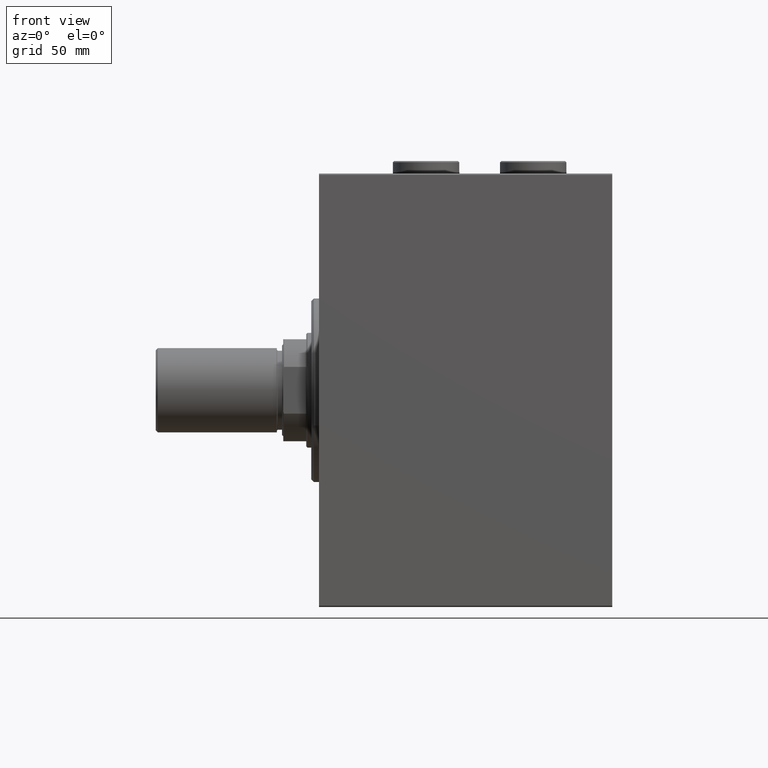
[diagram: clean part render]
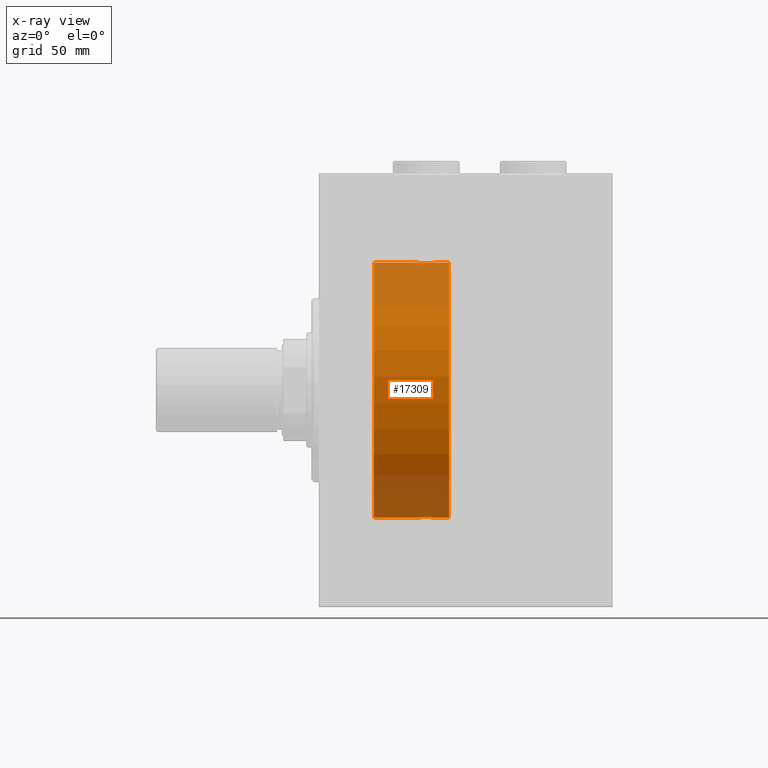
[diagram: x-ray — body ghosted, one internal face saturated and labeled with its STEP entity id]
A machine part, front view, then the same camera in x-ray: the body is ghosted and one INTERNAL B-rep face — a face not visible from any outside direction — is saturated and labeled: STEP entity #17309.
In plain terms, the highlighted cylindrical surface (partial cylindrical patch) has radius 50 mm, axis along (-1, -0, -0).
Its self-contained STEP definition (entity closure, byte-faithful):
#47 = CARTESIAN_POINT ( 'NONE',  ( 45.37519984081966840, -2.597781786597462172, 49.93300953359122474 ) ) ;
#279 = CARTESIAN_POINT ( 'NONE',  ( 43.09737617879037685, -4.115209769591108291, 49.83039196709103891 ) ) ;
#602 = CARTESIAN_POINT ( 'NONE',  ( 44.81153066515420136, -3.199146701881660171, -49.89793607725462010 ) ) ;
#1975 = CARTESIAN_POINT ( 'NONE',  ( 43.37333436579038448, -4.031616700143171528, -49.83731072121799599 ) ) ;
#2007 = CARTESIAN_POINT ( 'NONE',  ( 21.60000000000000142, 0.000000000000000000, 0.000000000000000000 ) ) ;
#2023 = LINE ( 'NONE', #26704, #21055 ) ;
#2192 = CARTESIAN_POINT ( 'NONE',  ( 44.13136399446156588, -3.687400765141517045, -49.86408552998297239 ) ) ;
#2198 = EDGE_CURVE ( 'NONE', #19107, #13311, #20018, .T. ) ;
#2686 = EDGE_LOOP ( 'NONE', ( #6447, #42546, #14525, #14672, #13079, #34974, #10286, #41869 ) ) ;
#3294 = CARTESIAN_POINT ( 'NONE',  ( 41.44002132304352415, -4.222042462213121183, 49.82145436824653473 ) ) ;
#3355 = CARTESIAN_POINT ( 'NONE',  ( 46.25000000000000000, 6.123233970928975205E-15, -50.00000000000000000 ) ) ;
#3966 = LINE ( 'NONE', #35100, #39115 ) ;
#4197 = DIRECTION ( 'NONE',  ( -1.000000000000000000, -0.000000000000000000, -0.000000000000000000 ) ) ;
#4299 = CARTESIAN_POINT ( 'NONE',  ( 45.37881717263738324, -2.593114840406115729, -49.93325460257640458 ) ) ;
#4647 = LINE ( 'NONE', #5331, #19961 ) ;
#5205 = CARTESIAN_POINT ( 'NONE',  ( 37.88750298919665482, -1.108337267831482009, -49.98846998601261760 ) ) ;
#5270 = CARTESIAN_POINT ( 'NONE',  ( 37.75000000000000711, -2.480770331693776875E-23, 50.00000000000000000 ) ) ;
#5331 = CARTESIAN_POINT ( 'NONE',  ( 51.00000000000000000, 6.123233995736766085E-15, -50.00000000000000000 ) ) ;
#5444 = CARTESIAN_POINT ( 'NONE',  ( 39.19302168160690769, -3.203153387937303087, -49.89767833571684008 ) ) ;
#5670 = CARTESIAN_POINT ( 'NONE',  ( 38.80078072038718062, -2.811461347331092320, -49.92127983148853332 ) ) ;
#5721 = DIRECTION ( 'NONE',  ( -1.000000000000000000, -0.000000000000000000, -0.000000000000000000 ) ) ;
#5890 = CARTESIAN_POINT ( 'NONE',  ( 38.31397167878049714, -2.133925816755172455, -49.95498245321557818 ) ) ;
#6447 = ORIENTED_EDGE ( 'NONE', *, *, #2198, .F. ) ;
#6748 = CARTESIAN_POINT ( 'NONE',  ( 38.79696438048011942, -2.807099414226279510, 49.92152599098507437 ) ) ;
#6980 = CARTESIAN_POINT ( 'NONE',  ( 46.25000000000001421, -0.2808785465865648034, 50.00000000000001421 ) ) ;
#7210 = CARTESIAN_POINT ( 'NONE',  ( 38.31062844320614857, -2.128188802142364722, 49.95522967821975158 ) ) ;
#7320 = CARTESIAN_POINT ( 'NONE',  ( 51.00000000000000000, 6.123233995736766085E-15, -50.00000000000000000 ) ) ;
#9119 = CARTESIAN_POINT ( 'NONE',  ( 42.28395287026697247, -4.249777379711388470, -49.81906655360197789 ) ) ;
#9349 = CARTESIAN_POINT ( 'NONE',  ( 37.75000000000000711, 3.968053759906218216E-15, -50.00000000000000000 ) ) ;
#10207 = FACE_OUTER_BOUND ( 'NONE', #2686, .T. ) ;
#10286 = ORIENTED_EDGE ( 'NONE', *, *, #44460, .T. ) ;
#10428 = CARTESIAN_POINT ( 'NONE',  ( 40.62666563420964394, -4.031616700143185739, 49.83731072121799599 ) ) ;
#11102 = CARTESIAN_POINT ( 'NONE',  ( 42.27724927037918690, -4.250219976861644433, 49.81902879621014080 ) ) ;
#12011 = CARTESIAN_POINT ( 'NONE',  ( 21.60000000000000142, 6.123233995736766085E-15, -50.00000000000000000 ) ) ;
#12120 = CARTESIAN_POINT ( 'NONE',  ( 46.11431913306007147, -1.101350136471736407, -49.98862054280446898 ) ) ;
#12208 = AXIS2_PLACEMENT_3D ( 'NONE', #17132, #24736, #21269 ) ;
#12348 = CARTESIAN_POINT ( 'NONE',  ( 43.88744739392799943, -3.818052230167706007, -49.85412671291931730 ) ) ;
#12810 = CARTESIAN_POINT ( 'NONE',  ( 39.87368355124921493, -3.690299572754706325, -49.86386974736159772 ) ) ;
#13015 = B_SPLINE_CURVE_WITH_KNOTS ( 'NONE', 3,
 ( #28648, #42689, #38788, #38318, #21041, #38554, #7210, #17364, #6748, #20806, #28430, #34871, #35106, #10428, #31876, #3294, #31653, #11102, #21266, #279, #31435, #35324, #45476, #13902, #25173, #27976, #47, #42012, #24501, #17596, #39226, #14354, #6980, #42468 ),
 .UNSPECIFIED., .F., .F.,
 ( 4, 2, 2, 2, 2, 2, 2, 2, 2, 2, 2, 2, 2, 2, 2, 2, 4 ),
 ( 0.01329343152928754573, 0.01412407817529632778, 0.01495472482130510983, 0.01578537146731389187, 0.01661601811332267392, 0.01744666475933145597, 0.01827731140534023802, 0.01910795805134902006, 0.01993860469735780558, 0.02076925134336658763, 0.02159989798937536967, 0.02243054463538415519, 0.02326119128139293724, 0.02409183792740172275, 0.02492248457341050133, 0.02575313121941928685, 0.02658377786542807236 ),
 .UNSPECIFIED. ) ;
#13079 = ORIENTED_EDGE ( 'NONE', *, *, #30315, .T. ) ;
#13123 = VERTEX_POINT ( 'NONE', #36828 ) ;
#13140 = VERTEX_POINT ( 'NONE', #29720 ) ;
#13311 = VERTEX_POINT ( 'NONE', #22033 ) ;
#13902 = CARTESIAN_POINT ( 'NONE',  ( 44.58820214676200777, -3.382416624899779123, 49.88570010427956447 ) ) ;
#14016 = DIRECTION ( 'NONE',  ( -1.000000000000000000, -0.000000000000000000, -0.000000000000000000 ) ) ;
#14354 = CARTESIAN_POINT ( 'NONE',  ( 46.22242635520781562, -0.5587117664567141651, 49.99763378604805553 ) ) ;
#14525 = ORIENTED_EDGE ( 'NONE', *, *, #31477, .T. ) ;
#14672 = ORIENTED_EDGE ( 'NONE', *, *, #25410, .T. ) ;
#16084 = DIRECTION ( 'NONE',  ( 0.000000000000000000, 0.000000000000000000, 1.000000000000000000 ) ) ;
#17132 = CARTESIAN_POINT ( 'NONE',  ( 51.00000000000000000, 0.000000000000000000, 0.000000000000000000 ) ) ;
#17309 = ADVANCED_FACE ( 'NONE', ( #10207 ), #45252, .F. ) ;
#17364 = CARTESIAN_POINT ( 'NONE',  ( 38.62118282736263097, -2.593114840406127275, 49.93325460257640458 ) ) ;
#17596 = CARTESIAN_POINT ( 'NONE',  ( 46.03079796155343928, -1.375411031076041901, 49.98173289062310687 ) ) ;
#18146 = CARTESIAN_POINT ( 'NONE',  ( 45.20303561951989479, -2.807099414226266632, -49.92152599098507437 ) ) ;
#18712 = DIRECTION ( 'NONE',  ( -1.000000000000000000, -0.000000000000000000, -0.000000000000000000 ) ) ;
#19043 = CARTESIAN_POINT ( 'NONE',  ( 45.82100581985224608, -1.881229021238117749, -49.96525240872482954 ) ) ;
#19107 = VERTEX_POINT ( 'NONE', #34891 ) ;
#19134 = VERTEX_POINT ( 'NONE', #28448 ) ;
#19325 = B_SPLINE_CURVE_WITH_KNOTS ( 'NONE', 3,
 ( #36324, #35648, #32887, #12120, #36557, #19043, #39105, #4299, #18146, #602, #40697, #2192, #12348, #1975, #44149, #26425, #9119, #23183, #26888, #41159, #37236, #19941, #12810, #44608, #5444, #5670, #19724, #5890, #40245, #33793, #5205, #30569, #34018, #9349 ),
 .UNSPECIFIED., .F., .F.,
 ( 4, 2, 2, 2, 2, 2, 2, 2, 2, 2, 2, 2, 2, 2, 2, 2, 4 ),
 ( 0.01329343152928757349, 0.01412407817529635554, 0.01495472482130513932, 0.01578537146731392310, 0.01661601811332270515, 0.01744666475933148719, 0.01827731140534026924, 0.01910795805134905129, 0.01993860469735783680, 0.02076925134336661885, 0.02159989798937540090, 0.02243054463538418294, 0.02326119128139296499, 0.02409183792740174704, 0.02492248457341052909, 0.02575313121941931460, 0.02658377786542809665 ),
 .UNSPECIFIED. ) ;
#19724 = CARTESIAN_POINT ( 'NONE',  ( 38.62480015918035292, -2.597781786597455067, -49.93300953359122474 ) ) ;
#19941 = CARTESIAN_POINT ( 'NONE',  ( 40.11782950515556934, -3.820681512513366851, -49.85392475515399724 ) ) ;
#19961 = VECTOR ( 'NONE', #18712, 1000.000000000000000 ) ;
#20018 = CIRCLE ( 'NONE', #21493, 50.00000000000000000 ) ;
#20806 = CARTESIAN_POINT ( 'NONE',  ( 39.18846933484581285, -3.199146701881674382, 49.89793607725460589 ) ) ;
#21041 = CARTESIAN_POINT ( 'NONE',  ( 37.96727357902688738, -1.369753890039652200, 49.98188917176553048 ) ) ;
#21055 = VECTOR ( 'NONE', #5721, 1000.000000000000000 ) ;
#21266 = CARTESIAN_POINT ( 'NONE',  ( 42.55408564880149669, -4.222816005855207777, 49.82138837911247009 ) ) ;
#21269 = DIRECTION ( 'NONE',  ( 0.000000000000000000, 0.000000000000000000, 1.000000000000000000 ) ) ;
#21493 = AXIS2_PLACEMENT_3D ( 'NONE', #23235, #29942, #43979 ) ;
#22033 = CARTESIAN_POINT ( 'NONE',  ( 51.00000000000000000, 0.000000000000000000, 50.00000000000000000 ) ) ;
#23183 = CARTESIAN_POINT ( 'NONE',  ( 41.72275072962082021, -4.250219976861628446, -49.81902879621016211 ) ) ;
#23235 = CARTESIAN_POINT ( 'NONE',  ( 51.00000000000000000, 0.000000000000000000, 0.000000000000000000 ) ) ;
#23616 = VECTOR ( 'NONE', #14016, 1000.000000000000000 ) ;
#23793 = VERTEX_POINT ( 'NONE', #5270 ) ;
#24501 = CARTESIAN_POINT ( 'NONE',  ( 45.81839248987871116, -1.886522330773416911, 49.96505190380066352 ) ) ;
#24689 = EDGE_CURVE ( 'NONE', #19107, #25807, #45587, .T. ) ;
#24736 = DIRECTION ( 'NONE',  ( -1.000000000000000000, -0.000000000000000000, -0.000000000000000000 ) ) ;
#25173 = CARTESIAN_POINT ( 'NONE',  ( 44.80697831839310652, -3.203153387937322183, 49.89767833571684719 ) ) ;
#25201 = EDGE_CURVE ( 'NONE', #23793, #13123, #3966, .T. ) ;
#25410 = EDGE_CURVE ( 'NONE', #19134, #25435, #4647, .T. ) ;
#25435 = VERTEX_POINT ( 'NONE', #12011 ) ;
#25807 = VERTEX_POINT ( 'NONE', #3355 ) ;
#26425 = CARTESIAN_POINT ( 'NONE',  ( 42.55997867695646164, -4.222042462213109637, -49.82145436824654183 ) ) ;
#26688 = DIRECTION ( 'NONE',  ( -1.000000000000000000, 0.000000000000000000, 0.000000000000000000 ) ) ;
#26704 = CARTESIAN_POINT ( 'NONE',  ( 51.00000000000000000, 0.000000000000000000, 50.00000000000000000 ) ) ;
#26888 = CARTESIAN_POINT ( 'NONE',  ( 41.44591435119851752, -4.222816005855191790, -49.82138837911247720 ) ) ;
#27976 = CARTESIAN_POINT ( 'NONE',  ( 45.19921927961281938, -2.811461347331110083, 49.92127983148853332 ) ) ;
#28430 = CARTESIAN_POINT ( 'NONE',  ( 39.40687279114044372, -3.378657745070624774, 49.88595615988428733 ) ) ;
#28448 = CARTESIAN_POINT ( 'NONE',  ( 37.75000000000000711, 3.968053759906218216E-15, -50.00000000000000000 ) ) ;
#28648 = CARTESIAN_POINT ( 'NONE',  ( 37.75000000000000711, -2.480770331693776875E-23, 50.00000000000000000 ) ) ;
#29720 = CARTESIAN_POINT ( 'NONE',  ( 46.25000000000000000, -1.456404791334935357E-15, 50.00000000000000000 ) ) ;
#29942 = DIRECTION ( 'NONE',  ( -1.000000000000000000, 0.000000000000000000, 0.000000000000000000 ) ) ;
#30315 = EDGE_CURVE ( 'NONE', #25435, #13123, #42923, .T. ) ;
#30569 = CARTESIAN_POINT ( 'NONE',  ( 37.77757364479219149, -0.5587117664567073927, -49.99763378604802000 ) ) ;
#31435 = CARTESIAN_POINT ( 'NONE',  ( 43.36710647554575360, -4.033756670430847180, 49.83713703490975178 ) ) ;
#31477 = EDGE_CURVE ( 'NONE', #25807, #19134, #19325, .T. ) ;
#31653 = CARTESIAN_POINT ( 'NONE',  ( 41.71604712973302043, -4.249777379711404457, 49.81906655360197789 ) ) ;
#31876 = CARTESIAN_POINT ( 'NONE',  ( 40.89676703965783133, -4.113647494206481348, 49.83052139214890985 ) ) ;
#31894 = AXIS2_PLACEMENT_3D ( 'NONE', #2007, #26688, #16084 ) ;
#32887 = CARTESIAN_POINT ( 'NONE',  ( 46.22310752799001676, -0.5531336717328987351, -49.99769193709645521 ) ) ;
#33793 = CARTESIAN_POINT ( 'NONE',  ( 37.96920203844656783, -1.375411031076034130, -49.98173289062310687 ) ) ;
#34018 = CARTESIAN_POINT ( 'NONE',  ( 37.75000000000001421, -0.2808785465865586972, -50.00000000000001421 ) ) ;
#34871 = CARTESIAN_POINT ( 'NONE',  ( 39.86863600553844833, -3.687400765141529924, 49.86408552998297949 ) ) ;
#34891 = CARTESIAN_POINT ( 'NONE',  ( 51.00000000000000000, 6.123233995736766085E-15, -50.00000000000000000 ) ) ;
#34974 = ORIENTED_EDGE ( 'NONE', *, *, #25201, .F. ) ;
#35100 = CARTESIAN_POINT ( 'NONE',  ( 51.00000000000000000, 0.000000000000000000, 50.00000000000000000 ) ) ;
#35106 = CARTESIAN_POINT ( 'NONE',  ( 40.11255260607202899, -3.818052230167721106, 49.85412671291931730 ) ) ;
#35324 = CARTESIAN_POINT ( 'NONE',  ( 43.88217049484444487, -3.820681512513379730, 49.85392475515401145 ) ) ;
#35648 = CARTESIAN_POINT ( 'NONE',  ( 46.25000000000000711, -0.2773743941468470586, -50.00000000000000711 ) ) ;
#36324 = CARTESIAN_POINT ( 'NONE',  ( 46.25000000000000000, 6.123233970928975205E-15, -50.00000000000000000 ) ) ;
#36557 = CARTESIAN_POINT ( 'NONE',  ( 46.03272642097310552, -1.369753890039644872, -49.98188917176551627 ) ) ;
#36828 = CARTESIAN_POINT ( 'NONE',  ( 21.60000000000000142, 0.000000000000000000, 50.00000000000000000 ) ) ;
#37236 = CARTESIAN_POINT ( 'NONE',  ( 40.63289352445425351, -4.033756670430834745, -49.83713703490973757 ) ) ;
#38318 = CARTESIAN_POINT ( 'NONE',  ( 37.88568086693992143, -1.101350136471743291, 49.98862054280449030 ) ) ;
#38554 = CARTESIAN_POINT ( 'NONE',  ( 38.17899418014774682, -1.881229021238125743, 49.96525240872482954 ) ) ;
#38788 = CARTESIAN_POINT ( 'NONE',  ( 37.77689247200999745, -0.5531336717329046193, 49.99769193709644099 ) ) ;
#39105 = CARTESIAN_POINT ( 'NONE',  ( 45.68937155679385853, -2.128188802142354508, -49.95522967821975158 ) ) ;
#39115 = VECTOR ( 'NONE', #4197, 1000.000000000000000 ) ;
#39226 = CARTESIAN_POINT ( 'NONE',  ( 46.11249701080335228, -1.108337267831491335, 49.98846998601261049 ) ) ;
#40245 = CARTESIAN_POINT ( 'NONE',  ( 38.18160751012128884, -1.886522330773408695, -49.96505190380065642 ) ) ;
#40697 = CARTESIAN_POINT ( 'NONE',  ( 44.59312720885954917, -3.378657745070611895, -49.88595615988430154 ) ) ;
#41159 = CARTESIAN_POINT ( 'NONE',  ( 40.90262382120962315, -4.115209769591094968, -49.83039196709103891 ) ) ;
#41869 = ORIENTED_EDGE ( 'NONE', *, *, #42794, .F. ) ;
#42012 = CARTESIAN_POINT ( 'NONE',  ( 45.68602832121950286, -2.133925816755179117, 49.95498245321557818 ) ) ;
#42468 = CARTESIAN_POINT ( 'NONE',  ( 46.25000000000000000, -1.456404791334935357E-15, 50.00000000000000000 ) ) ;
#42546 = ORIENTED_EDGE ( 'NONE', *, *, #24689, .T. ) ;
#42689 = CARTESIAN_POINT ( 'NONE',  ( 37.74999999999999289, -0.2773743941468536645, 50.00000000000000000 ) ) ;
#42794 = EDGE_CURVE ( 'NONE', #13311, #13140, #2023, .T. ) ;
#42923 = CIRCLE ( 'NONE', #31894, 50.00000000000000000 ) ;
#43979 = DIRECTION ( 'NONE',  ( 0.000000000000000000, 0.000000000000000000, 1.000000000000000000 ) ) ;
#44149 = CARTESIAN_POINT ( 'NONE',  ( 43.10323296034215446, -4.113647494206469801, -49.83052139214892406 ) ) ;
#44460 = EDGE_CURVE ( 'NONE', #23793, #13140, #13015, .T. ) ;
#44608 = CARTESIAN_POINT ( 'NONE',  ( 39.41179785323798512, -3.382416624899766244, -49.88570010427955026 ) ) ;
#45252 = CYLINDRICAL_SURFACE ( 'NONE', #12208, 50.00000000000000000 ) ;
#45476 = CARTESIAN_POINT ( 'NONE',  ( 44.12631644875080639, -3.690299572754719204, 49.86386974736159772 ) ) ;
#45587 = LINE ( 'NONE', #7320, #23616 ) ;